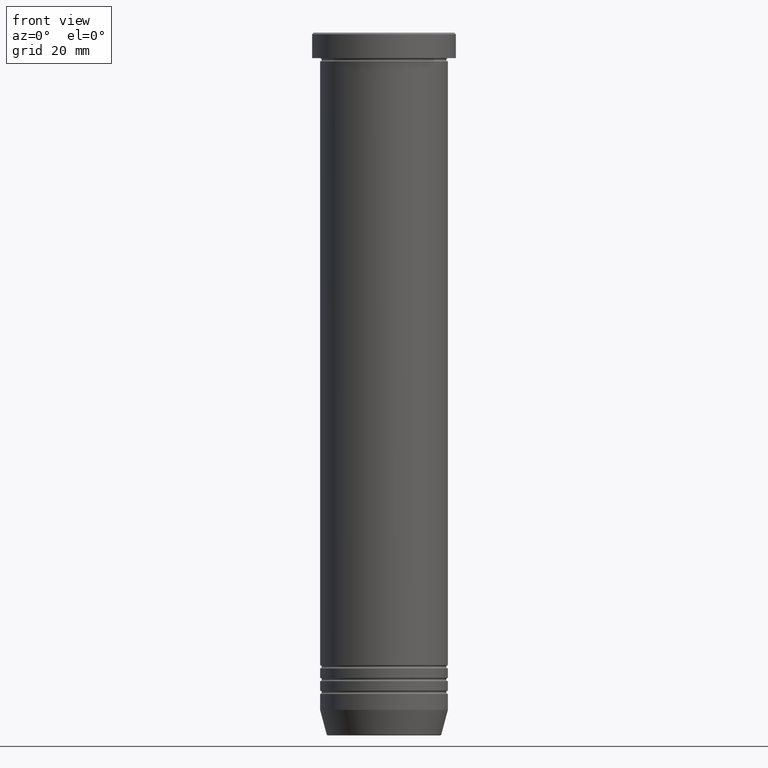
[diagram: clean part render]
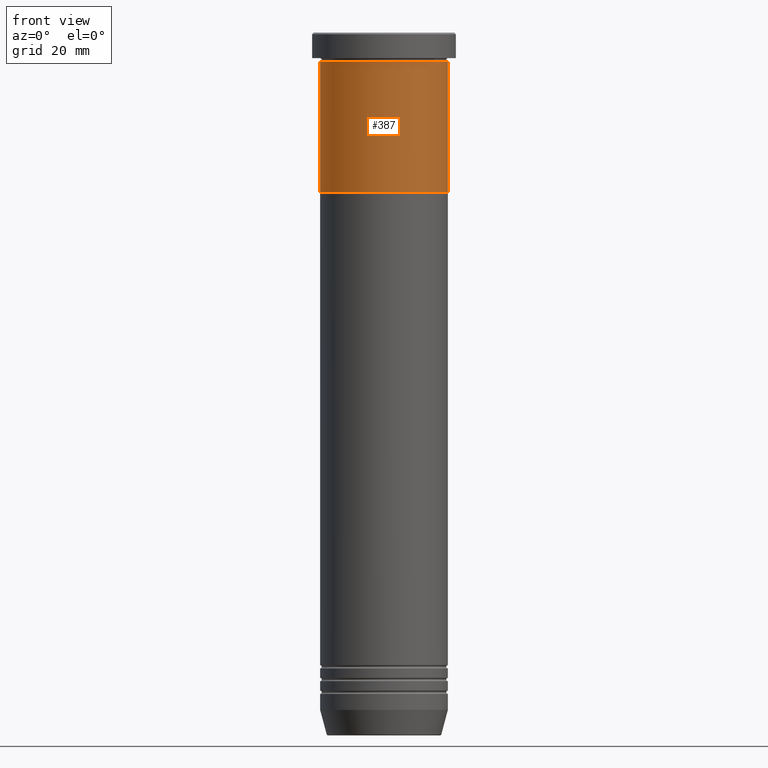
[diagram: same view with one face highlighted and labeled with its STEP entity id]
A machine part, front view. The second image highlights one B-rep face of the part: STEP entity #387.
In plain terms, the highlighted cylindrical surface (partial cylindrical patch) has radius 20 mm, axis along (-0, -0, 1).
Its self-contained STEP definition (entity closure, byte-faithful):
#4 = LINE ( 'NONE', #657, #1048 ) ;
#9 = DIRECTION ( 'NONE',  ( -0.000000000000000000, -0.000000000000000000, 1.000000000000000000 ) ) ;
#36 = CARTESIAN_POINT ( 'NONE',  ( 20.00000000000000000, 0.000000000000000000, -50.00000000000000000 ) ) ;
#48 = EDGE_CURVE ( 'NONE', #93, #676, #348, .T. ) ;
#52 = EDGE_LOOP ( 'NONE', ( #97, #882, #110, #516 ) ) ;
#90 = CYLINDRICAL_SURFACE ( 'NONE', #280, 20.00000000000000000 ) ;
#93 = VERTEX_POINT ( 'NONE', #737 ) ;
#97 = ORIENTED_EDGE ( 'NONE', *, *, #269, .F. ) ;
#110 = ORIENTED_EDGE ( 'NONE', *, *, #495, .T. ) ;
#136 = CARTESIAN_POINT ( 'NONE',  ( -20.00000000000000000, 2.449293598294706513E-15, 0.000000000000000000 ) ) ;
#146 = EDGE_CURVE ( 'NONE', #747, #589, #242, .T. ) ;
#233 = DIRECTION ( 'NONE',  ( -0.000000000000000000, -0.000000000000000000, 1.000000000000000000 ) ) ;
#242 = CIRCLE ( 'NONE', #843, 20.00000000000000000 ) ;
#251 = DIRECTION ( 'NONE',  ( 1.000000000000000000, 0.000000000000000000, 0.000000000000000000 ) ) ;
#269 = EDGE_CURVE ( 'NONE', #93, #747, #628, .T. ) ;
#280 = AXIS2_PLACEMENT_3D ( 'NONE', #562, #9, #251 ) ;
#294 = CARTESIAN_POINT ( 'NONE',  ( 20.00000000000000000, 0.000000000000000000, -9.000000000000001776 ) ) ;
#303 = DIRECTION ( 'NONE',  ( -0.000000000000000000, -0.000000000000000000, 1.000000000000000000 ) ) ;
#323 = DIRECTION ( 'NONE',  ( 1.000000000000000000, 0.000000000000000000, 0.000000000000000000 ) ) ;
#348 = CIRCLE ( 'NONE', #733, 20.00000000000000000 ) ;
#378 = VECTOR ( 'NONE', #303, 1000.000000000000000 ) ;
#387 = ADVANCED_FACE ( 'NONE', ( #1005 ), #90, .T. ) ;
#492 = DIRECTION ( 'NONE',  ( -0.000000000000000000, -0.000000000000000000, 1.000000000000000000 ) ) ;
#495 = EDGE_CURVE ( 'NONE', #676, #589, #4, .T. ) ;
#516 = ORIENTED_EDGE ( 'NONE', *, *, #146, .F. ) ;
#529 = CARTESIAN_POINT ( 'NONE',  ( -20.00000000000000000, 2.449293598294706513E-15, -9.000000000000001776 ) ) ;
#562 = CARTESIAN_POINT ( 'NONE',  ( 0.000000000000000000, 0.000000000000000000, 0.000000000000000000 ) ) ;
#563 = CARTESIAN_POINT ( 'NONE',  ( 0.000000000000000000, 0.000000000000000000, -50.00000000000000000 ) ) ;
#589 = VERTEX_POINT ( 'NONE', #294 ) ;
#605 = DIRECTION ( 'NONE',  ( 1.000000000000000000, 0.000000000000000000, 0.000000000000000000 ) ) ;
#628 = LINE ( 'NONE', #136, #378 ) ;
#657 = CARTESIAN_POINT ( 'NONE',  ( 20.00000000000000000, 0.000000000000000000, 0.000000000000000000 ) ) ;
#676 = VERTEX_POINT ( 'NONE', #36 ) ;
#733 = AXIS2_PLACEMENT_3D ( 'NONE', #563, #233, #323 ) ;
#737 = CARTESIAN_POINT ( 'NONE',  ( -20.00000000000000000, 2.449293598294706513E-15, -50.00000000000000000 ) ) ;
#747 = VERTEX_POINT ( 'NONE', #529 ) ;
#768 = DIRECTION ( 'NONE',  ( -0.000000000000000000, -0.000000000000000000, 1.000000000000000000 ) ) ;
#786 = CARTESIAN_POINT ( 'NONE',  ( 0.000000000000000000, 0.000000000000000000, -9.000000000000001776 ) ) ;
#843 = AXIS2_PLACEMENT_3D ( 'NONE', #786, #768, #605 ) ;
#882 = ORIENTED_EDGE ( 'NONE', *, *, #48, .T. ) ;
#1005 = FACE_OUTER_BOUND ( 'NONE', #52, .T. ) ;
#1048 = VECTOR ( 'NONE', #492, 1000.000000000000000 ) ;